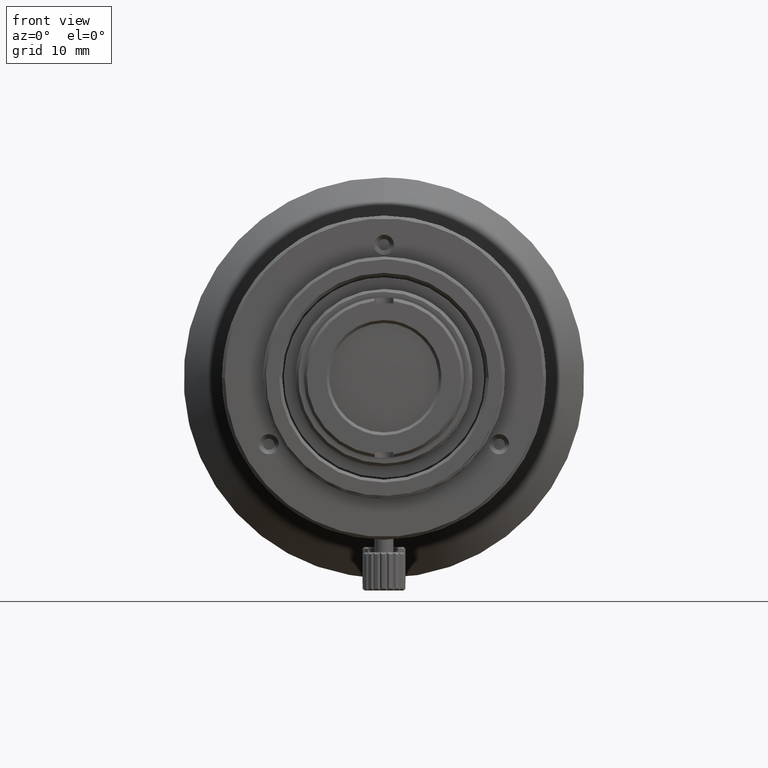
[diagram: clean part render]
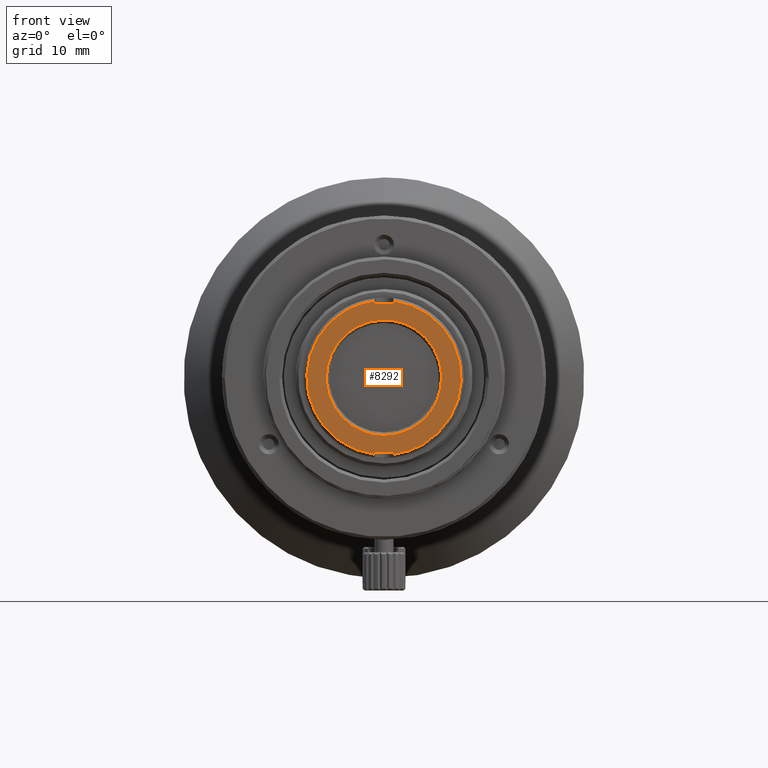
[diagram: same view with one face highlighted and labeled with its STEP entity id]
A machine part, front view. The second image highlights one B-rep face of the part: STEP entity #8292.
In plain terms, the highlighted planar face has unit normal (0, 1, 0).
Its self-contained STEP definition (entity closure, byte-faithful):
#554 = LINE ( 'NONE', #92975, #39912 ) ;
#1461 = VERTEX_POINT ( 'NONE', #22831 ) ;
#1491 = CARTESIAN_POINT ( 'NONE',  ( 1.969268915174350099, -19.68905046142026194, 7.917449272718897646 ) ) ;
#2887 = CARTESIAN_POINT ( 'NONE',  ( 1.969268914846255658, -19.68905046142026549, -7.917449272800502591 ) ) ;
#2930 = ORIENTED_EDGE ( 'NONE', *, *, #63783, .F. ) ;
#2938 = CARTESIAN_POINT ( 'NONE',  ( -6.050000000016098056, -19.68905046140890036, 0.7919431480945352542 ) ) ;
#3872 = CARTESIAN_POINT ( 'NONE',  ( -5.892534693858986650, -19.68905046140888970, 1.583574700377861744 ) ) ;
#4812 = CARTESIAN_POINT ( 'NONE',  ( -3.718007655858127869, -19.68905046140889681, 4.837984396521864738 ) ) ;
#6109 = DIRECTION ( 'NONE',  ( 1.000000000000000000, 0.000000000000000000, -0.000000000000000000 ) ) ;
#8241 = CARTESIAN_POINT ( 'NONE',  ( -1.000000000094333430, -19.68905046141999904, 7.799999999935000261 ) ) ;
#8292 = ADVANCED_FACE ( 'NONE', ( #52706, #67777 ), #60244, .F. ) ;
#10444 = VERTEX_POINT ( 'NONE', #85091 ) ;
#11350 = AXIS2_PLACEMENT_3D ( 'NONE', #16875, #67311, #45637 ) ;
#11817 = CARTESIAN_POINT ( 'NONE',  ( 3.718007655858127869, -19.68905046140889681, -4.837984396521863850 ) ) ;
#12614 = CARTESIAN_POINT ( 'NONE',  ( -5.424208975048832926, -19.68905046141935600, 6.094422043259095645 ) ) ;
#12721 = B_SPLINE_CURVE_WITH_KNOTS ( 'NONE', 3,
 ( #60914, #82600, #89670, #25091, #4812, #53831, #62316, #3872, #2938, #18005, #31691, #61389, #84001, #54774, #83543, #46776, #90150, #18937 ),
 .UNSPECIFIED., .F., .F.,
 ( 4, 2, 2, 2, 2, 2, 2, 2, 4 ),
 ( 0.000000000000000000, 0.1250000000000000278, 0.2500000000000000000, 0.3750000000000000000, 0.5000000000000000000, 0.6249999999999998890, 0.7499999999999998890, 0.8750000000000000000, 1.000000000000000000 ),
 .UNSPECIFIED. ) ;
#12744 = CARTESIAN_POINT ( 'NONE',  ( 4.837984396521862962, -19.68905046140889681, 3.718007655858127869 ) ) ;
#12757 = DIRECTION ( 'NONE',  ( 1.000000000000000000, 0.000000000000000000, -0.000000000000000000 ) ) ;
#13744 = CARTESIAN_POINT ( 'NONE',  ( -1.000000000193765670, -19.68905046141961179, -8.038034585604554749 ) ) ;
#14253 = VECTOR ( 'NONE', #6109, 1000.000000000000000 ) ;
#15276 = CARTESIAN_POINT ( 'NONE',  ( -6.717454832059990721, -19.68905046141935600, -4.630315715542141497 ) ) ;
#16875 = CARTESIAN_POINT ( 'NONE',  ( 0.000000000000000000, -19.68905046141999904, 1.274713667954000043E-11 ) ) ;
#17021 = CARTESIAN_POINT ( 'NONE',  ( 4.643931967542829220, -19.68905046142026194, -6.708048816696460470 ) ) ;
#17943 = CARTESIAN_POINT ( 'NONE',  ( 4.445467880916721868E-16, -19.68905046141333770, 6.050000000009259082 ) ) ;
#18005 = CARTESIAN_POINT ( 'NONE',  ( -6.050000000016098056, -19.68905046140889681, -0.7919431480945322566 ) ) ;
#18414 = CARTESIAN_POINT ( 'NONE',  ( 5.892534693858989314, -19.68905046140889681, 1.583574700377858635 ) ) ;
#18937 = CARTESIAN_POINT ( 'NONE',  ( -2.963645253944480259E-16, -19.68905046141333770, -6.050000000009259082 ) ) ;
#19684 = CARTESIAN_POINT ( 'NONE',  ( -7.230056834496822127, -19.68905046141935244, -3.780251475273631367 ) ) ;
#20138 = CARTESIAN_POINT ( 'NONE',  ( -4.643931967558355467, -19.68905046141935244, 6.708048816686732252 ) ) ;
#20773 = VECTOR ( 'NONE', #61136, 1000.000000000000000 ) ;
#21750 = LINE ( 'NONE', #57124, #69980 ) ;
#21796 = EDGE_CURVE ( 'NONE', #24024, #64716, #86512, .T. ) ;
#22831 = CARTESIAN_POINT ( 'NONE',  ( 1.000000000215999885, -19.68905046141999904, -7.799999999974000175 ) ) ;
#23180 = CARTESIAN_POINT ( 'NONE',  ( 2.916216892643901826, -19.68905046142026549, 7.619691731389618639 ) ) ;
#24024 = VERTEX_POINT ( 'NONE', #13744 ) ;
#24098 = CARTESIAN_POINT ( 'NONE',  ( 1.000000000397213151, -19.68905046142015891, 8.038034585563162082 ) ) ;
#25029 = CARTESIAN_POINT ( 'NONE',  ( 3.046894831252049407, -19.68905046140889681, 5.286407649557326671 ) ) ;
#25091 = CARTESIAN_POINT ( 'NONE',  ( -3.046894831252047631, -19.68905046140889681, 5.286407649557326671 ) ) ;
#25328 = ORIENTED_EDGE ( 'NONE', *, *, #75039, .F. ) ;
#25965 = CARTESIAN_POINT ( 'NONE',  ( 1.583574700377859079, -19.68905046140889326, -5.892534693858989314 ) ) ;
#26296 = CARTESIAN_POINT ( 'NONE',  ( -2.916216892353485690, -19.68905046141935244, -7.619691731501666787 ) ) ;
#26424 = CARTESIAN_POINT ( 'NONE',  ( 6.050000000016098944, -19.68905046140889681, -0.7919431480945346991 ) ) ;
#26759 = CARTESIAN_POINT ( 'NONE',  ( -7.921427476886401919, -19.68905046141935600, -1.953205000708271966 ) ) ;
#26883 = CARTESIAN_POINT ( 'NONE',  ( 1.583574700377859745, -19.68905046140889681, 5.892534693858990202 ) ) ;
#27235 = EDGE_LOOP ( 'NONE', ( #28384, #51763, #32854, #25328, #2930, #76837, #72966, #42447 ) ) ;
#27815 = LINE ( 'NONE', #92860, #69892 ) ;
#28384 = ORIENTED_EDGE ( 'NONE', *, *, #77094, .F. ) ;
#28421 = EDGE_CURVE ( 'NONE', #10444, #66438, #68102, .T. ) ;
#29345 = VECTOR ( 'NONE', #92272, 1000.000000000000000 ) ;
#31691 = CARTESIAN_POINT ( 'NONE',  ( -5.892534693858989314, -19.68905046140890036, -1.583574700377860855 ) ) ;
#32105 = CARTESIAN_POINT ( 'NONE',  ( 7.230056834438403079, -19.68905046142026549, -3.780251475383547000 ) ) ;
#32854 = ORIENTED_EDGE ( 'NONE', *, *, #74350, .T. ) ;
#34761 = CARTESIAN_POINT ( 'NONE',  ( -1.969268914856223907, -19.68905046141935600, -7.917449272798889659 ) ) ;
#35440 = DIRECTION ( 'NONE',  ( 0.000000000000000000, 0.000000000000000000, -1.000000000000000000 ) ) ;
#37930 = ORIENTED_EDGE ( 'NONE', *, *, #28421, .F. ) ;
#38008 = CARTESIAN_POINT ( 'NONE',  ( -1.000000000000000000, -19.68905046141999904, -7.799999999984666310 ) ) ;
#38708 = CARTESIAN_POINT ( 'NONE',  ( 7.230056834595055548, -19.68905046142026194, 3.780251475083936441 ) ) ;
#39178 = CARTESIAN_POINT ( 'NONE',  ( 8.100000000022420821, -19.68905046142026904, 0.9767410332251890148 ) ) ;
#39912 = VECTOR ( 'NONE', #71286, 1000.000000000000000 ) ;
#40576 = CARTESIAN_POINT ( 'NONE',  ( 5.892534693858990202, -19.68905046140889681, -1.583574700377858857 ) ) ;
#41368 = CARTESIAN_POINT ( 'NONE',  ( -1.969268914816832750, -19.68905046141935244, 7.917449272808687155 ) ) ;
#42392 = CARTESIAN_POINT ( 'NONE',  ( 0.000000000000000000, -19.68905046141999904, 7.799999999935000261 ) ) ;
#42447 = ORIENTED_EDGE ( 'NONE', *, *, #57527, .T. ) ;
#44869 = CARTESIAN_POINT ( 'NONE',  ( 6.717454832190040470, -19.68905046142026194, 4.630315715351993155 ) ) ;
#45637 = DIRECTION ( 'NONE',  ( 0.000000000000000000, -0.000000000000000000, 1.000000000000000000 ) ) ;
#45784 = CARTESIAN_POINT ( 'NONE',  ( 2.916216892328145960, -19.68905046142026549, -7.619691731510465971 ) ) ;
#46776 = CARTESIAN_POINT ( 'NONE',  ( -1.583574700377863076, -19.68905046140889681, -5.892534693858989314 ) ) ;
#47989 = CARTESIAN_POINT ( 'NONE',  ( -2.916216892315573350, -19.68905046141935600, 7.619691731516176070 ) ) ;
#48385 = LINE ( 'NONE', #82347, #20773 ) ;
#48902 = VERTEX_POINT ( 'NONE', #38008 ) ;
#49412 = VERTEX_POINT ( 'NONE', #70008 ) ;
#51763 = ORIENTED_EDGE ( 'NONE', *, *, #77557, .F. ) ;
#51928 = CARTESIAN_POINT ( 'NONE',  ( 4.643931967820806861, -19.68905046142026549, 6.708048816504019740 ) ) ;
#52550 = CARTESIAN_POINT ( 'NONE',  ( -1.000000000113599574, -19.68905046142323201, 8.038034585613203831 ) ) ;
#52706 = FACE_BOUND ( 'NONE', #87316, .T. ) ;
#53773 = CARTESIAN_POINT ( 'NONE',  ( 0.7919431480945350321, -19.68905046140889681, 6.050000000016099833 ) ) ;
#53784 = CARTESIAN_POINT ( 'NONE',  ( 8.099999999981942977, -19.68905046142026549, -0.9767410335608485150 ) ) ;
#53831 = CARTESIAN_POINT ( 'NONE',  ( -4.837984396521864738, -19.68905046140890036, 3.718007655858129201 ) ) ;
#54774 = CARTESIAN_POINT ( 'NONE',  ( -3.718007655858127869, -19.68905046140889326, -4.837984396521862962 ) ) ;
#55005 = CARTESIAN_POINT ( 'NONE',  ( 1.000000000397213151, -19.68905046142015891, 8.038034585563162082 ) ) ;
#55516 = CARTESIAN_POINT ( 'NONE',  ( -8.099999999998662048, -19.68905046141935600, 0.9767410334291968255 ) ) ;
#55753 = VERTEX_POINT ( 'NONE', #63057 ) ;
#55974 = CARTESIAN_POINT ( 'NONE',  ( -1.000000000193765670, -19.68905046141961179, -8.038034585604554749 ) ) ;
#56433 = CARTESIAN_POINT ( 'NONE',  ( -1.000000000000000000, -19.68905046141999904, -8.070131892339999169 ) ) ;
#56893 = LINE ( 'NONE', #56433, #29345 ) ;
#57124 = CARTESIAN_POINT ( 'NONE',  ( 1.000000000000000000, -19.68905046141999904, 8.070131892381001038 ) ) ;
#57366 = B_SPLINE_CURVE_WITH_KNOTS ( 'NONE', 3,
 ( #24098, #1491, #23180, #51928, #67458, #44869, #38708, #73621, #39178, #53784, #66085, #32105, #67921, #59468, #17021, #45784, #2887, #75008 ),
 .UNSPECIFIED., .F., .F.,
 ( 4, 2, 2, 2, 2, 2, 2, 2, 4 ),
 ( 0.000000000000000000, 0.1249999999999999167, 0.2499999999999998890, 0.3749999999999998335, 0.4999999999999998890, 0.6249999999999998890, 0.7499999999999998890, 0.8750000000000000000, 1.000000000000000000 ),
 .UNSPECIFIED. ) ;
#57527 = EDGE_CURVE ( 'NONE', #48902, #1461, #27815, .T. ) ;
#59468 = CARTESIAN_POINT ( 'NONE',  ( 5.424208975022096091, -19.68905046142026549, -6.094422043281764623 ) ) ;
#60244 = PLANE ( 'NONE',  #11350 ) ;
#60914 = CARTESIAN_POINT ( 'NONE',  ( 4.445467880916721868E-16, -19.68905046141333770, 6.050000000009259082 ) ) ;
#61136 = DIRECTION ( 'NONE',  ( -0.000000000000000000, 0.000000000000000000, -1.000000000000000000 ) ) ;
#61389 = CARTESIAN_POINT ( 'NONE',  ( -5.286407649557325783, -19.68905046140890036, -3.046894831252049851 ) ) ;
#62316 = CARTESIAN_POINT ( 'NONE',  ( -5.286407649557325783, -19.68905046140890036, 3.046894831252051628 ) ) ;
#63054 = CARTESIAN_POINT ( 'NONE',  ( -7.230056834478013172, -19.68905046141935600, 3.780251475309601261 ) ) ;
#63057 = CARTESIAN_POINT ( 'NONE',  ( 1.000000000108666631, -19.68905046141999904, 7.799999999956332530 ) ) ;
#63176 = CARTESIAN_POINT ( 'NONE',  ( 0.7919431480945342550, -19.68905046140890036, -6.050000000016097168 ) ) ;
#63510 = CARTESIAN_POINT ( 'NONE',  ( -8.100000000003522160, -19.68905046141935244, -0.9767410333888972840 ) ) ;
#63783 = EDGE_CURVE ( 'NONE', #64716, #92085, #48385, .T. ) ;
#64716 = VERTEX_POINT ( 'NONE', #52550 ) ;
#66085 = CARTESIAN_POINT ( 'NONE',  ( 7.921427476848108107, -19.68905046142026549, -1.953205000860076757 ) ) ;
#66438 = VERTEX_POINT ( 'NONE', #68431 ) ;
#67311 = DIRECTION ( 'NONE',  ( 0.000000000000000000, 1.000000000000000000, 0.000000000000000000 ) ) ;
#67458 = CARTESIAN_POINT ( 'NONE',  ( 5.424208975274646072, -19.68905046142026549, 6.094422043056991534 ) ) ;
#67777 = FACE_OUTER_BOUND ( 'NONE', #27235, .T. ) ;
#67921 = CARTESIAN_POINT ( 'NONE',  ( 6.717454831998165510, -19.68905046142026549, -4.630315715630360707 ) ) ;
#68102 = B_SPLINE_CURVE_WITH_KNOTS ( 'NONE', 3,
 ( #76407, #63176, #25965, #83479, #11817, #82538, #77329, #40576, #26424, #70247, #18414, #76873, #12744, #69325, #25029, #26883, #53773, #17943 ),
 .UNSPECIFIED., .F., .F.,
 ( 4, 2, 2, 2, 2, 2, 2, 2, 4 ),
 ( 0.000000000000000000, 0.1250000000000000000, 0.2500000000000000000, 0.3750000000000000000, 0.5000000000000000000, 0.6250000000000000000, 0.7500000000000000000, 0.8750000000000000000, 1.000000000000000000 ),
 .UNSPECIFIED. ) ;
#68135 = ORIENTED_EDGE ( 'NONE', *, *, #70205, .F. ) ;
#68431 = CARTESIAN_POINT ( 'NONE',  ( 4.445467880916721868E-16, -19.68905046141333770, 6.050000000009259082 ) ) ;
#69325 = CARTESIAN_POINT ( 'NONE',  ( 3.718007655858128313, -19.68905046140889681, 4.837984396521863850 ) ) ;
#69892 = VECTOR ( 'NONE', #12757, 1000.000000000000000 ) ;
#69980 = VECTOR ( 'NONE', #35440, 1000.000000000000000 ) ;
#70008 = CARTESIAN_POINT ( 'NONE',  ( 1.000000000325980132, -19.68905046142807791, -8.038034585580907887 ) ) ;
#70205 = EDGE_CURVE ( 'NONE', #66438, #10444, #12721, .T. ) ;
#70247 = CARTESIAN_POINT ( 'NONE',  ( 6.050000000016098944, -19.68905046140889681, 0.7919431480945336999 ) ) ;
#70582 = CARTESIAN_POINT ( 'NONE',  ( -1.000000000113599574, -19.68905046142323201, 8.038034585613203831 ) ) ;
#70694 = LINE ( 'NONE', #42392, #14253 ) ;
#71286 = DIRECTION ( 'NONE',  ( 0.000000000000000000, -0.000000000000000000, 1.000000000000000000 ) ) ;
#72798 = CARTESIAN_POINT ( 'NONE',  ( -7.921427476876684359, -19.68905046141935244, 1.953205000747682218 ) ) ;
#72966 = ORIENTED_EDGE ( 'NONE', *, *, #75918, .F. ) ;
#73621 = CARTESIAN_POINT ( 'NONE',  ( 7.921427476929048694, -19.68905046142026904, 1.953205000531816671 ) ) ;
#74350 = EDGE_CURVE ( 'NONE', #78840, #55753, #21750, .T. ) ;
#75008 = CARTESIAN_POINT ( 'NONE',  ( 1.000000000325980132, -19.68905046142807791, -8.038034585580907887 ) ) ;
#75039 = EDGE_CURVE ( 'NONE', #92085, #55753, #70694, .T. ) ;
#75918 = EDGE_CURVE ( 'NONE', #48902, #24024, #56893, .T. ) ;
#76407 = CARTESIAN_POINT ( 'NONE',  ( -2.963645253944480259E-16, -19.68905046141333770, -6.050000000009259082 ) ) ;
#76752 = CARTESIAN_POINT ( 'NONE',  ( -6.717454832036952261, -19.68905046141935244, 4.630315715575565427 ) ) ;
#76837 = ORIENTED_EDGE ( 'NONE', *, *, #21796, .F. ) ;
#76873 = CARTESIAN_POINT ( 'NONE',  ( 5.286407649557325783, -19.68905046140889681, 3.046894831252048963 ) ) ;
#77094 = EDGE_CURVE ( 'NONE', #49412, #1461, #554, .T. ) ;
#77329 = CARTESIAN_POINT ( 'NONE',  ( 5.286407649557326671, -19.68905046140889681, -3.046894831252048963 ) ) ;
#77557 = EDGE_CURVE ( 'NONE', #78840, #49412, #57366, .T. ) ;
#78840 = VERTEX_POINT ( 'NONE', #55005 ) ;
#79406 = CARTESIAN_POINT ( 'NONE',  ( -4.643931967591727883, -19.68905046141934534, -6.708048816663627179 ) ) ;
#82347 = CARTESIAN_POINT ( 'NONE',  ( -1.000000000000000000, -19.68905046141999904, 8.070131892396000595 ) ) ;
#82538 = CARTESIAN_POINT ( 'NONE',  ( 4.837984396521863850, -19.68905046140889681, -3.718007655858128313 ) ) ;
#82600 = CARTESIAN_POINT ( 'NONE',  ( -0.7919431480945334778, -19.68905046140890391, 6.050000000016098944 ) ) ;
#83479 = CARTESIAN_POINT ( 'NONE',  ( 3.046894831252048075, -19.68905046140889326, -5.286407649557325783 ) ) ;
#83543 = CARTESIAN_POINT ( 'NONE',  ( -3.046894831252052072, -19.68905046140889326, -5.286407649557324895 ) ) ;
#84001 = CARTESIAN_POINT ( 'NONE',  ( -4.837984396521863850, -19.68905046140889326, -3.718007655858125649 ) ) ;
#85091 = CARTESIAN_POINT ( 'NONE',  ( -2.963645253944480259E-16, -19.68905046141333770, -6.050000000009259082 ) ) ;
#86512 = B_SPLINE_CURVE_WITH_KNOTS ( 'NONE', 3,
 ( #55974, #34761, #26296, #79406, #91352, #15276, #19684, #26759, #63510, #55516, #72798, #63054, #76752, #12614, #20138, #47989, #41368, #70582 ),
 .UNSPECIFIED., .F., .F.,
 ( 4, 2, 2, 2, 2, 2, 2, 2, 4 ),
 ( 0.000000000000000000, 0.1250000000000000000, 0.2500000000000000000, 0.3750000000000000000, 0.5000000000000000000, 0.6250000000000000000, 0.7500000000000000000, 0.8750000000000000000, 1.000000000000000000 ),
 .UNSPECIFIED. ) ;
#87316 = EDGE_LOOP ( 'NONE', ( #37930, #68135 ) ) ;
#89670 = CARTESIAN_POINT ( 'NONE',  ( -1.583574700377857969, -19.68905046140890036, 5.892534693858991091 ) ) ;
#90150 = CARTESIAN_POINT ( 'NONE',  ( -0.7919431480945359203, -19.68905046140889681, -6.050000000016098944 ) ) ;
#91352 = CARTESIAN_POINT ( 'NONE',  ( -5.424208975079157113, -19.68905046141935244, -6.094422043232106567 ) ) ;
#92085 = VERTEX_POINT ( 'NONE', #8241 ) ;
#92272 = DIRECTION ( 'NONE',  ( -0.000000000000000000, 0.000000000000000000, -1.000000000000000000 ) ) ;
#92860 = CARTESIAN_POINT ( 'NONE',  ( 3.350009158963999762E-11, -19.68905046141999904, -7.799999999999999822 ) ) ;
#92975 = CARTESIAN_POINT ( 'NONE',  ( 1.000000000648000098, -19.68905046141999904, 1.274713667954000043E-11 ) ) ;